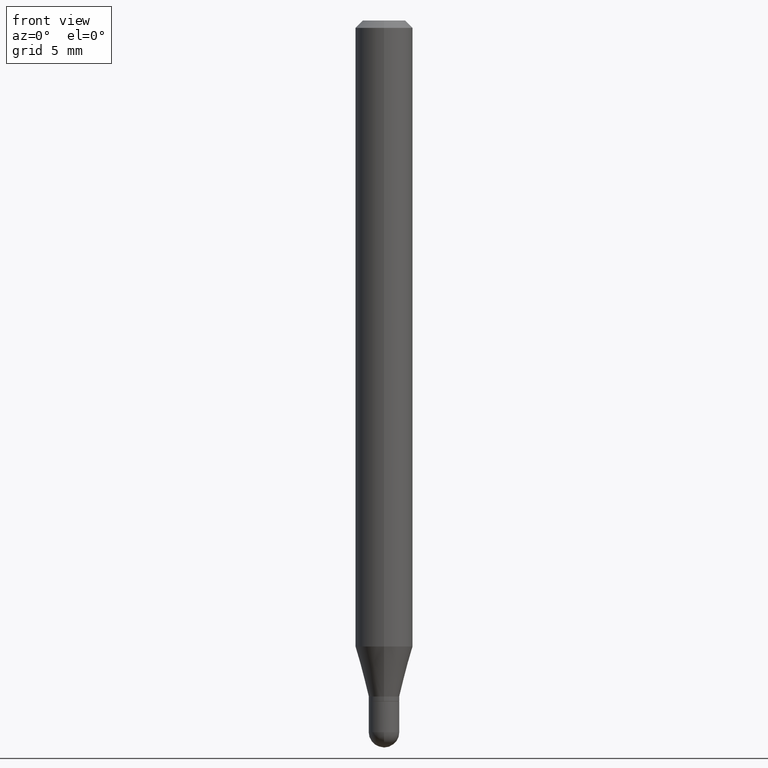
[diagram: clean part render]
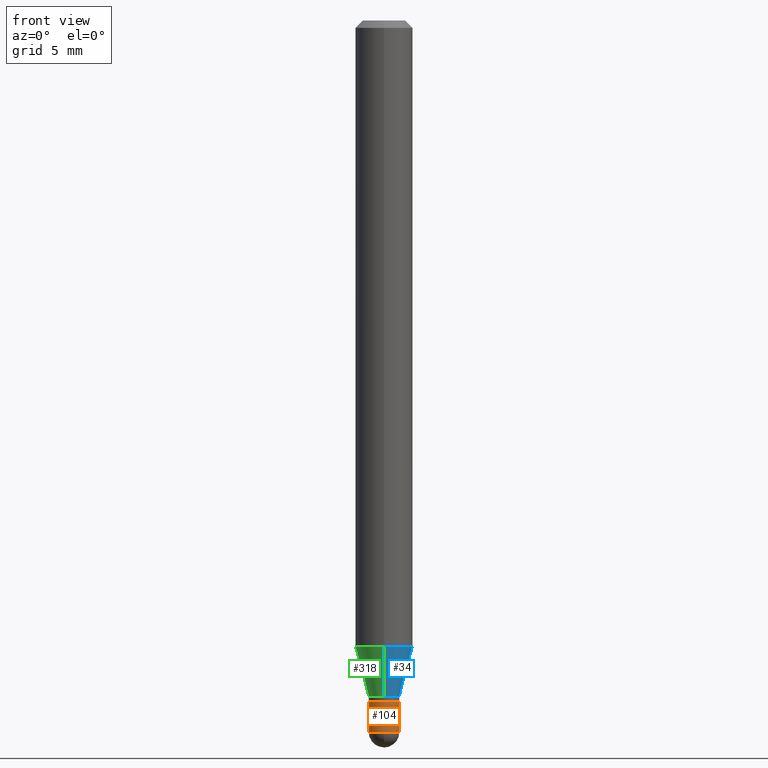
[diagram: same view with three faces highlighted in distinct colors, each labeled with its STEP entity id]
A machine part, front view with three faces highlighted in distinct colors.
Their STEP definitions:

[orange] entity #104 — the highlighted cylindrical surface (edge-blend (fillet) strip) has radius 0.8001 mm, axis along (-0, 0, 1).
#4 = ORIENTED_EDGE ( 'NONE', *, *, #450, .F. ) ;
#19 = AXIS2_PLACEMENT_3D ( 'NONE', #263, #383, #348 ) ;
#26 = VECTOR ( 'NONE', #191, 39.37007874015748143 ) ;
#73 = DIRECTION ( 'NONE',  ( -2.445468806185136597E-29, 3.491481338843145583E-15, 1.000000000000000000 ) ) ;
#92 = DIRECTION ( 'NONE',  ( -2.445468806185136597E-29, 3.491481338843145583E-15, 1.000000000000000000 ) ) ;
#104 = ADVANCED_FACE ( 'NONE', ( #425 ), #384, .T. ) ;
#109 = CARTESIAN_POINT ( 'NONE',  ( 0.000000000000000000, 0.000000000000000000, 0.000000000000000000 ) ) ;
#114 = DIRECTION ( 'NONE',  ( 1.000000000000000000, -6.982962677686254878E-15, 0.000000000000000000 ) ) ;
#138 = AXIS2_PLACEMENT_3D ( 'NONE', #109, #73, #198 ) ;
#139 = CIRCLE ( 'NONE', #19, 0.03150000000000000022 ) ;
#144 = EDGE_CURVE ( 'NONE', #214, #300, #320, .T. ) ;
#155 = CARTESIAN_POINT ( 'NONE',  ( 3.581633613538751591E-29, -5.113623568869670202E-15, -1.464599999999999902 ) ) ;
#175 = EDGE_LOOP ( 'NONE', ( #259, #407, #429, #211, #4 ) ) ;
#176 = AXIS2_PLACEMENT_3D ( 'NONE', #155, #470, #114 ) ;
#191 = DIRECTION ( 'NONE',  ( -2.445468806185136877E-29, 3.491481338843145188E-15, 1.000000000000000000 ) ) ;
#198 = DIRECTION ( 'NONE',  ( 1.000000000000000000, -6.982962677686265133E-15, 4.876176775795935793E-29 ) ) ;
#201 = CARTESIAN_POINT ( 'NONE',  ( 0.03150000000000000022, -5.113623568869669413E-15, -1.401599999999999957 ) ) ;
#206 = VERTEX_POINT ( 'NONE', #347 ) ;
#211 = ORIENTED_EDGE ( 'NONE', *, *, #484, .T. ) ;
#213 = LINE ( 'NONE', #368, #423 ) ;
#214 = VERTEX_POINT ( 'NONE', #468 ) ;
#218 = AXIS2_PLACEMENT_3D ( 'NONE', #396, #92, #256 ) ;
#219 = EDGE_CURVE ( 'NONE', #214, #329, #358, .T. ) ;
#223 = CIRCLE ( 'NONE', #218, 0.03150000000000000716 ) ;
#241 = DIRECTION ( 'NONE',  ( -2.445468806185136877E-29, 3.491481338843145188E-15, 1.000000000000000000 ) ) ;
#246 = CARTESIAN_POINT ( 'NONE',  ( -0.03150000000000000022, -4.779820944931679381E-15, -1.401599999999999957 ) ) ;
#256 = DIRECTION ( 'NONE',  ( 1.000000000000000000, -6.982962677686254878E-15, 0.000000000000000000 ) ) ;
#259 = ORIENTED_EDGE ( 'NONE', *, *, #144, .F. ) ;
#263 = CARTESIAN_POINT ( 'NONE',  ( 3.427569078749087191E-29, -4.893660244522552864E-15, -1.401599999999999957 ) ) ;
#277 = CARTESIAN_POINT ( 'NONE',  ( -2.199633243470810260E-16, -0.03150000000000503786, -1.464599999999999902 ) ) ;
#290 = VERTEX_POINT ( 'NONE', #201 ) ;
#300 = VERTEX_POINT ( 'NONE', #246 ) ;
#320 = LINE ( 'NONE', #386, #26 ) ;
#329 = VERTEX_POINT ( 'NONE', #277 ) ;
#347 = CARTESIAN_POINT ( 'NONE',  ( 0.03150000000000001410, -5.223605231043228871E-15, -1.464599999999999902 ) ) ;
#348 = DIRECTION ( 'NONE',  ( 1.000000000000000000, -6.982962677686255667E-15, 0.000000000000000000 ) ) ;
#358 = CIRCLE ( 'NONE', #176, 0.03150000000000000716 ) ;
#368 = CARTESIAN_POINT ( 'NONE',  ( 0.03150000000000000716, -2.199633243471174122E-16, 1.535995684375720062E-30 ) ) ;
#383 = DIRECTION ( 'NONE',  ( -2.445468806185136597E-29, 3.491481338843145583E-15, 1.000000000000000000 ) ) ;
#384 = CYLINDRICAL_SURFACE ( 'NONE', #138, 0.03150000000000000716 ) ;
#386 = CARTESIAN_POINT ( 'NONE',  ( -0.03150000000000000716, 2.238209617644316094E-16, -1.549464553430295502E-30 ) ) ;
#396 = CARTESIAN_POINT ( 'NONE',  ( 3.581633613538751591E-29, -5.113623568869670202E-15, -1.464599999999999902 ) ) ;
#407 = ORIENTED_EDGE ( 'NONE', *, *, #219, .T. ) ;
#423 = VECTOR ( 'NONE', #241, 39.37007874015748143 ) ;
#425 = FACE_OUTER_BOUND ( 'NONE', #175, .T. ) ;
#429 = ORIENTED_EDGE ( 'NONE', *, *, #471, .T. ) ;
#450 = EDGE_CURVE ( 'NONE', #300, #290, #139, .T. ) ;
#468 = CARTESIAN_POINT ( 'NONE',  ( -0.03150000000000001410, -4.779820944931679381E-15, -1.464599999999999902 ) ) ;
#470 = DIRECTION ( 'NONE',  ( -2.445468806185136597E-29, 3.491481338843145583E-15, 1.000000000000000000 ) ) ;
#471 = EDGE_CURVE ( 'NONE', #329, #206, #223, .T. ) ;
#484 = EDGE_CURVE ( 'NONE', #206, #290, #213, .T. ) ;

[blue] entity #34 — the highlighted conical surface has half-angle 15 deg.
#13 = VECTOR ( 'NONE', #75, 39.37007874015748854 ) ;
#32 = DIRECTION ( 'NONE',  ( -6.982962677686265922E-15, -1.000000000000000000, 4.626330217890369336E-15 ) ) ;
#34 = ADVANCED_FACE ( 'NONE', ( #458 ), #182, .T. ) ;
#52 = EDGE_CURVE ( 'NONE', #307, #115, #135, .T. ) ;
#57 = ORIENTED_EDGE ( 'NONE', *, *, #52, .T. ) ;
#69 = DIRECTION ( 'NONE',  ( -2.445497261081806566E-29, 3.491440589811561722E-15, 1.000000000000000000 ) ) ;
#75 = DIRECTION ( 'NONE',  ( -1.807323732225331323E-15, -0.2588190451025183525, 0.9659258262890689783 ) ) ;
#89 = EDGE_CURVE ( 'NONE', #307, #252, #353, .T. ) ;
#115 = VERTEX_POINT ( 'NONE', #152 ) ;
#120 = AXIS2_PLACEMENT_3D ( 'NONE', #449, #489, #217 ) ;
#135 = CIRCLE ( 'NONE', #245, 0.03149999999999991696 ) ;
#152 = CARTESIAN_POINT ( 'NONE',  ( 3.216982236154178205E-16, 0.03149999999999505973, -1.391099999999999781 ) ) ;
#180 = ORIENTED_EDGE ( 'NONE', *, *, #399, .T. ) ;
#182 = CONICAL_SURFACE ( 'NONE', #120, 0.03149999999999991696, 0.2617993877991504625 ) ;
#197 = LINE ( 'NONE', #352, #338 ) ;
#217 = DIRECTION ( 'NONE',  ( -6.982962677686266711E-15, -1.000000000000000000, 0.000000000000000000 ) ) ;
#245 = AXIS2_PLACEMENT_3D ( 'NONE', #457, #69, #500 ) ;
#252 = VERTEX_POINT ( 'NONE', #390 ) ;
#291 = DIRECTION ( 'NONE',  ( 1.839019923739601499E-15, 0.2588190451025251249, 0.9659258262890670910 ) ) ;
#301 = CIRCLE ( 'NONE', #446, 0.05904999999999999832 ) ;
#307 = VERTEX_POINT ( 'NONE', #366 ) ;
#338 = VECTOR ( 'NONE', #291, 39.37007874015748854 ) ;
#340 = EDGE_CURVE ( 'NONE', #252, #367, #301, .T. ) ;
#352 = CARTESIAN_POINT ( 'NONE',  ( 2.238209617644649881E-16, 0.03149999999999505973, -1.391099999999999781 ) ) ;
#353 = LINE ( 'NONE', #460, #13 ) ;
#359 = ORIENTED_EDGE ( 'NONE', *, *, #89, .F. ) ;
#366 = CARTESIAN_POINT ( 'NONE',  ( -2.199633243470827763E-16, -0.03150000000000477418, -1.391099999999999781 ) ) ;
#367 = VERTEX_POINT ( 'NONE', #461 ) ;
#380 = CARTESIAN_POINT ( 'NONE',  ( 3.150490103115979382E-29, -4.497960066801637033E-15, -1.288282000251477433 ) ) ;
#390 = CARTESIAN_POINT ( 'NONE',  ( -4.123439461173426755E-16, -0.05905000000000452248, -1.288282000251476989 ) ) ;
#399 = EDGE_CURVE ( 'NONE', #115, #367, #197, .T. ) ;
#417 = DIRECTION ( 'NONE',  ( -2.445497261081806566E-29, 3.491440589811561722E-15, 1.000000000000000000 ) ) ;
#446 = AXIS2_PLACEMENT_3D ( 'NONE', #380, #417, #32 ) ;
#449 = CARTESIAN_POINT ( 'NONE',  ( 3.401931239890901450E-29, -4.856943004486863182E-15, -1.391099999999999781 ) ) ;
#451 = EDGE_LOOP ( 'NONE', ( #57, #180, #481, #359 ) ) ;
#457 = CARTESIAN_POINT ( 'NONE',  ( 3.401931239890901450E-29, -4.856943004486863182E-15, -1.391099999999999781 ) ) ;
#458 = FACE_OUTER_BOUND ( 'NONE', #451, .T. ) ;
#460 = CARTESIAN_POINT ( 'NONE',  ( -2.199633243470827763E-16, -0.03150000000000477418, -1.391099999999999781 ) ) ;
#461 = CARTESIAN_POINT ( 'NONE',  ( 4.195754854663704065E-16, 0.05904999999999547416, -1.288282000251477655 ) ) ;
#481 = ORIENTED_EDGE ( 'NONE', *, *, #340, .F. ) ;
#489 = DIRECTION ( 'NONE',  ( -2.445497261081806566E-29, 3.491440589811561722E-15, 1.000000000000000000 ) ) ;
#500 = DIRECTION ( 'NONE',  ( -6.982962677686266711E-15, -1.000000000000000000, 0.000000000000000000 ) ) ;

[green] entity #318 — the highlighted conical surface has half-angle 15 deg.
#13 = VECTOR ( 'NONE', #75, 39.37007874015748854 ) ;
#21 = CARTESIAN_POINT ( 'NONE',  ( 3.401931239890901450E-29, -4.856943004486863182E-15, -1.391099999999999781 ) ) ;
#45 = EDGE_CURVE ( 'NONE', #115, #307, #464, .T. ) ;
#75 = DIRECTION ( 'NONE',  ( -1.807323732225331323E-15, -0.2588190451025183525, 0.9659258262890689783 ) ) ;
#83 = ORIENTED_EDGE ( 'NONE', *, *, #45, .T. ) ;
#87 = ORIENTED_EDGE ( 'NONE', *, *, #447, .F. ) ;
#89 = EDGE_CURVE ( 'NONE', #307, #252, #353, .T. ) ;
#97 = ORIENTED_EDGE ( 'NONE', *, *, #89, .T. ) ;
#115 = VERTEX_POINT ( 'NONE', #152 ) ;
#152 = CARTESIAN_POINT ( 'NONE',  ( 3.216982236154178205E-16, 0.03149999999999505973, -1.391099999999999781 ) ) ;
#170 = CIRCLE ( 'NONE', #308, 0.05904999999999999832 ) ;
#174 = CARTESIAN_POINT ( 'NONE',  ( 3.150490103115979382E-29, -4.497960066801637033E-15, -1.288282000251477433 ) ) ;
#178 = DIRECTION ( 'NONE',  ( -2.445497261081806566E-29, 3.491440589811561722E-15, 1.000000000000000000 ) ) ;
#183 = CONICAL_SURFACE ( 'NONE', #315, 0.03149999999999991696, 0.2617993877991504625 ) ;
#197 = LINE ( 'NONE', #352, #338 ) ;
#220 = DIRECTION ( 'NONE',  ( -2.445497261081806566E-29, 3.491440589811561722E-15, 1.000000000000000000 ) ) ;
#226 = DIRECTION ( 'NONE',  ( -2.445497261081806566E-29, 3.491440589811561722E-15, 1.000000000000000000 ) ) ;
#242 = ORIENTED_EDGE ( 'NONE', *, *, #399, .F. ) ;
#252 = VERTEX_POINT ( 'NONE', #390 ) ;
#264 = AXIS2_PLACEMENT_3D ( 'NONE', #21, #178, #495 ) ;
#275 = CARTESIAN_POINT ( 'NONE',  ( 3.401931239890901450E-29, -4.856943004486863182E-15, -1.391099999999999781 ) ) ;
#291 = DIRECTION ( 'NONE',  ( 1.839019923739601499E-15, 0.2588190451025251249, 0.9659258262890670910 ) ) ;
#307 = VERTEX_POINT ( 'NONE', #366 ) ;
#308 = AXIS2_PLACEMENT_3D ( 'NONE', #174, #220, #336 ) ;
#315 = AXIS2_PLACEMENT_3D ( 'NONE', #275, #226, #472 ) ;
#318 = ADVANCED_FACE ( 'NONE', ( #499 ), #183, .T. ) ;
#336 = DIRECTION ( 'NONE',  ( -6.982962677686265922E-15, -1.000000000000000000, 4.626330217890369336E-15 ) ) ;
#338 = VECTOR ( 'NONE', #291, 39.37007874015748854 ) ;
#352 = CARTESIAN_POINT ( 'NONE',  ( 2.238209617644649881E-16, 0.03149999999999505973, -1.391099999999999781 ) ) ;
#353 = LINE ( 'NONE', #460, #13 ) ;
#366 = CARTESIAN_POINT ( 'NONE',  ( -2.199633243470827763E-16, -0.03150000000000477418, -1.391099999999999781 ) ) ;
#367 = VERTEX_POINT ( 'NONE', #461 ) ;
#390 = CARTESIAN_POINT ( 'NONE',  ( -4.123439461173426755E-16, -0.05905000000000452248, -1.288282000251476989 ) ) ;
#399 = EDGE_CURVE ( 'NONE', #115, #367, #197, .T. ) ;
#445 = EDGE_LOOP ( 'NONE', ( #242, #83, #97, #87 ) ) ;
#447 = EDGE_CURVE ( 'NONE', #367, #252, #170, .T. ) ;
#460 = CARTESIAN_POINT ( 'NONE',  ( -2.199633243470827763E-16, -0.03150000000000477418, -1.391099999999999781 ) ) ;
#461 = CARTESIAN_POINT ( 'NONE',  ( 4.195754854663704065E-16, 0.05904999999999547416, -1.288282000251477655 ) ) ;
#464 = CIRCLE ( 'NONE', #264, 0.03149999999999991696 ) ;
#472 = DIRECTION ( 'NONE',  ( -6.982962677686266711E-15, -1.000000000000000000, 0.000000000000000000 ) ) ;
#495 = DIRECTION ( 'NONE',  ( -6.982962677686266711E-15, -1.000000000000000000, 0.000000000000000000 ) ) ;
#499 = FACE_OUTER_BOUND ( 'NONE', #445, .T. ) ;